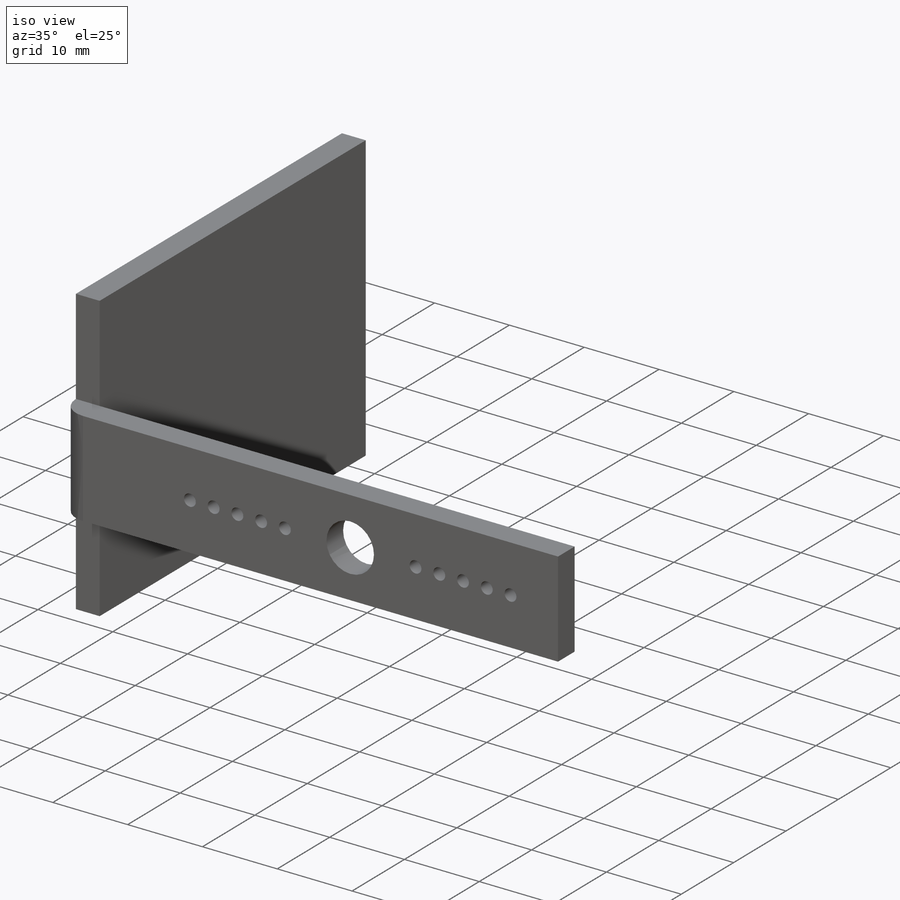
[diagram: iso view]
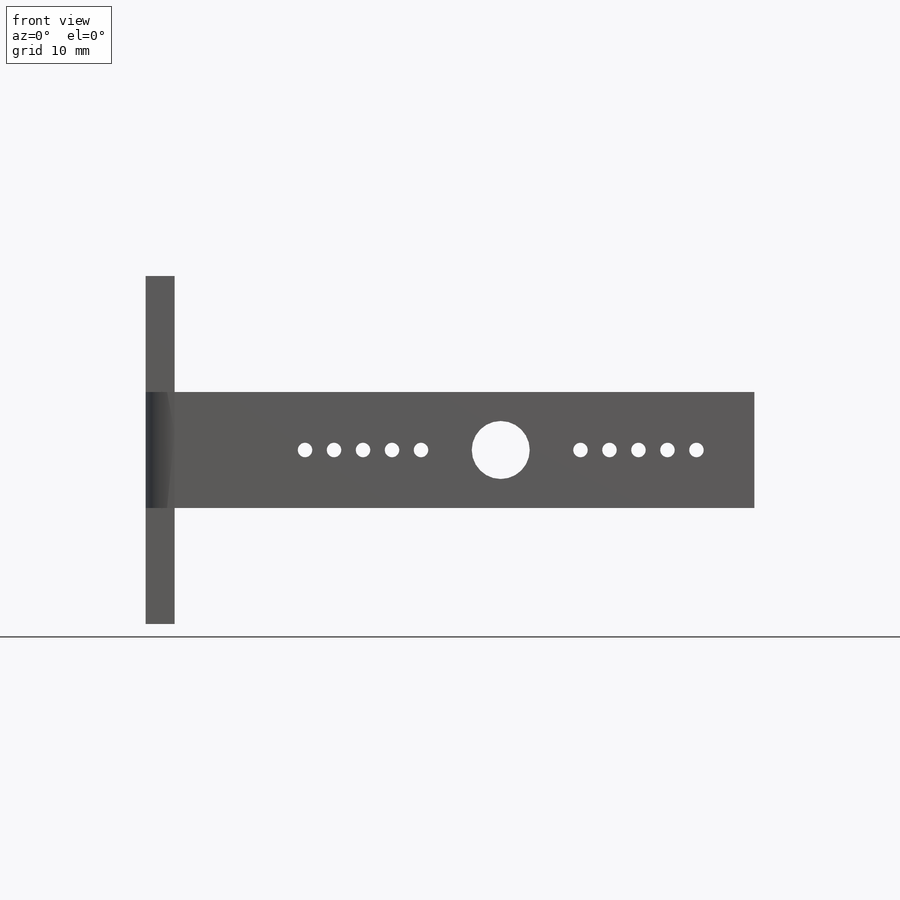
[diagram: front view]
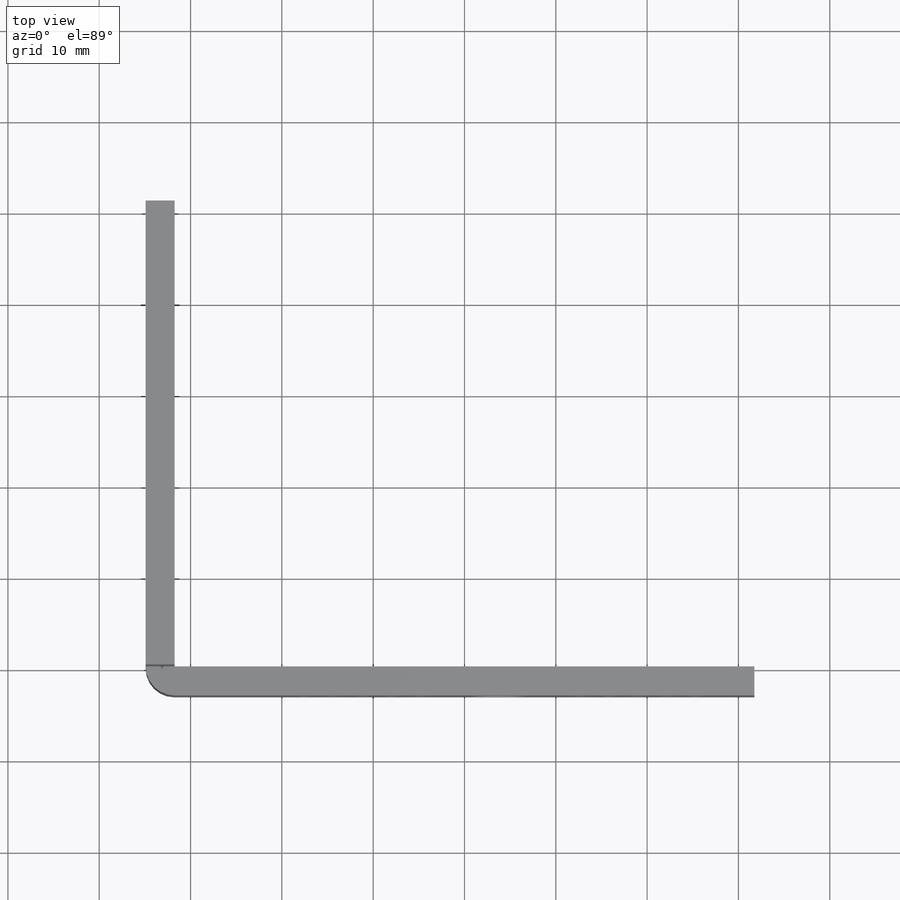
[diagram: top view]
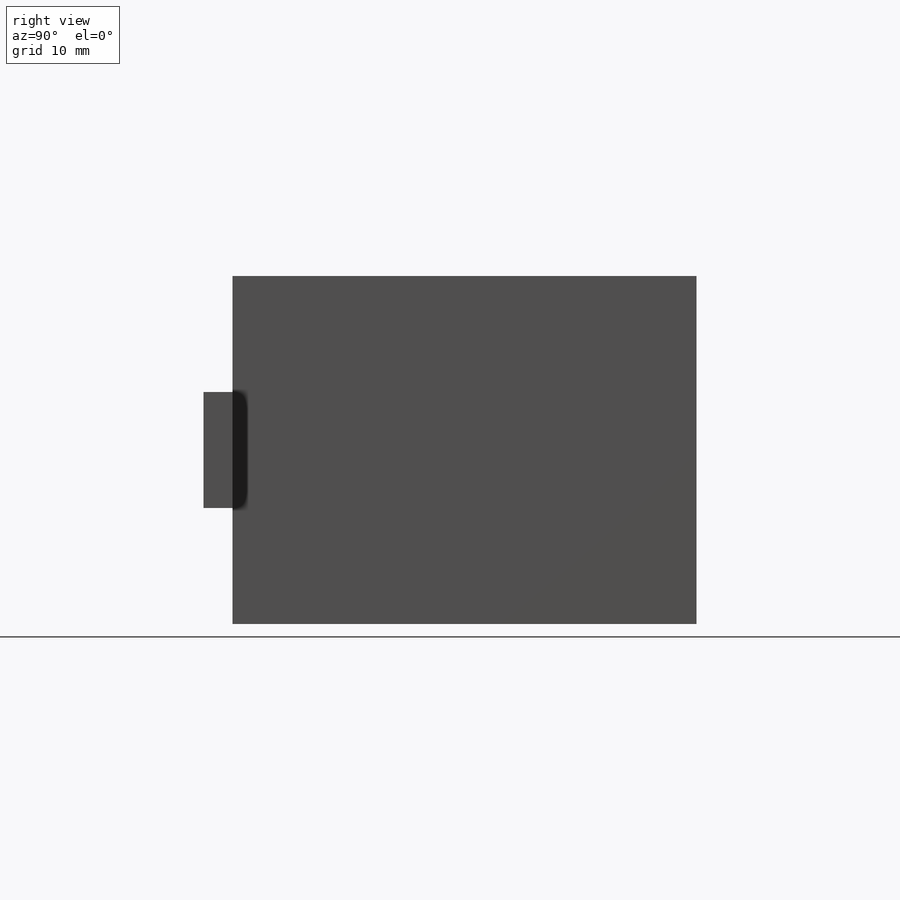
[diagram: right view]
SOLIDWORKS PART (.sldprt)
format: sldprt  version: not decoded by parser v0  size: 236,032 bytes
history: native  units: mm
features: sketch x6, extrude x3, cut_extrude x3, pattern_linear x2, material x1 (+11 scaffold rows collapsed)
feature tree (26):
  scaffold x11  (default folders/planes/origin — collapsed)
  material  "Material <not specified>"
  sketch  "Sketch1"  dims[D1=12.7mm D2=63.5mm]
  extrude  "Boss-Extrude1"  Depth=3.175mm
  sketch  "Sketch2"  dims[c1.D1=19.05mm c1.D2=6.35mm c1.D3=6.35mm c2.D1=50.8mm c2.D2=19.05mm c2.D3=~19.928179mm c3.D2=25.4mm c3.D3=25.4mm c3.D4=19.05mm c3.D1=19.05mm c4.D2=50.8mm c4.D3=0.0mm]
  extrude  "Boss-Extrude2"  Depth=3.175mm
  sketch  "Sketch3"  dims[D1=1.5875mm D2=6.35mm]
  sketch  "Sketch4"
  extrude  "Boss-Extrude3"  Depth=12.7mm
  cut_extrude  "Cut-Extrude1"  Depth=6.35mm
  pattern_linear  "LPattern1"  Count1=5 Count2=1 Spacing1=3.175mm Spacing2=2.54mm
  sketch  "Sketch5"  dims[c1.D2=1.5875mm c1.D3=1.5875mm c1.D1=15.875mm c2.D3=~0.79375mm]
  cut_extrude  "Cut-Extrude2"  Depth=6.35mm
  pattern_linear  "LPattern2"  Count1=5 Count2=1 Spacing1=3.175mm Spacing2=2.54mm
  sketch  "Sketch6"  dims[D1=6.35mm]
  cut_extrude  "Cut-Extrude3"  [1 undecoded]
decode coverage: 12 of 14 modeling features carry decoded parameters
note: ~ marks probable driven/reference dimensions
note: 1 parameter value undecoded
note: suppression state not decoded; provenance and decode notes live in map.json
